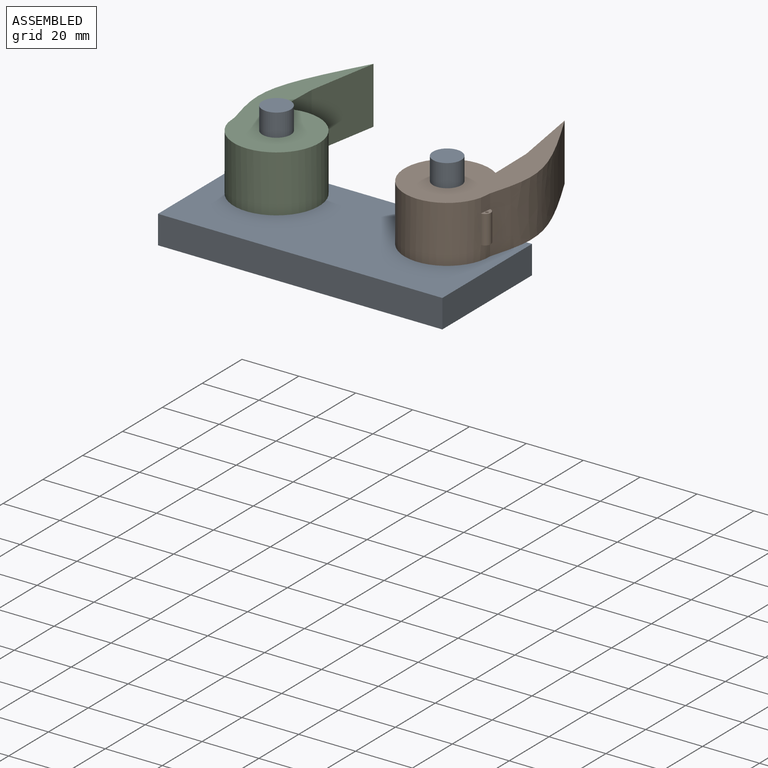
[diagram: assembled view]
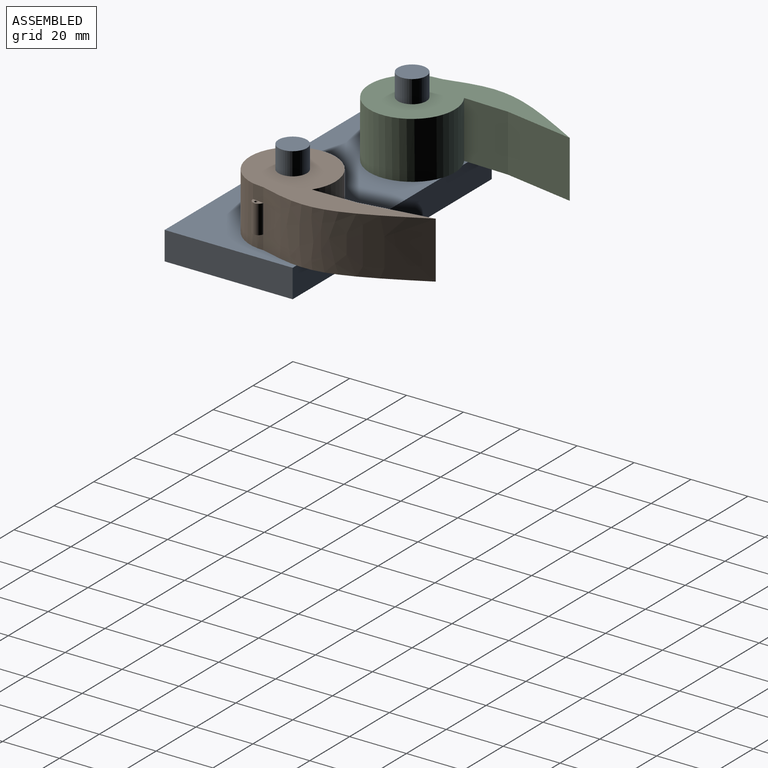
[diagram: assembled view, second angle]
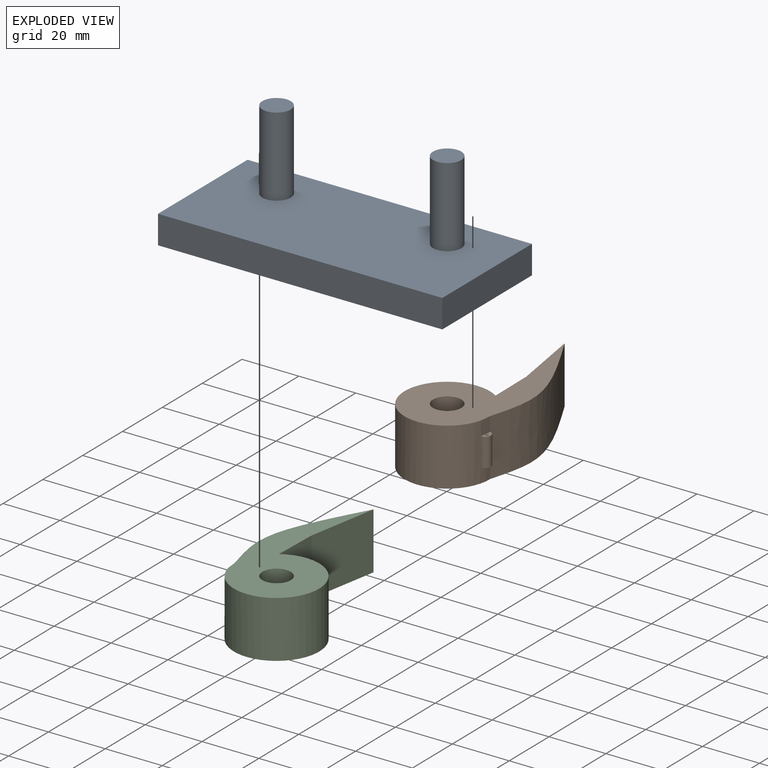
[diagram: exploded view]
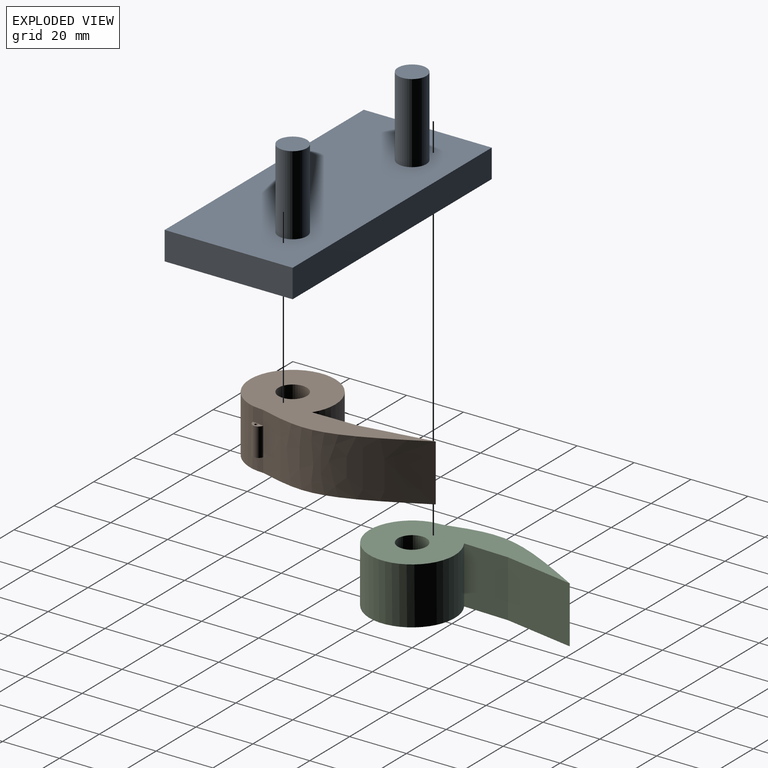
[diagram: exploded view, second angle]
ASSEMBLY  parts=3 mates=2
PART A: 10 faces, bbox 100x45x38 mm
  f0: plane 100x10mm, normal (0,1,0), area 1000mm2, adj f1,f3,f4,f5
  f1: plane 45x10mm, normal (-1,0,0), area 450mm2, adj f0,f2,f4,f5
  f2: plane 100x10mm, normal (0,-1,0), area 1000mm2, adj f1,f3,f4,f5
  f3: plane 45x10mm, normal (1,0,0), area 450mm2, adj f0,f2,f4,f5
  f4: plane 100x45mm, normal (0,0,1), area 4342.9mm2, adj f0,f1,f2,f3,f6,f8
  f5: plane 100x45mm, normal (0,0,-1), area 4500mm2, adj f0,f1,f2,f3
  f6: cylinder r=5mm len=28mm, axis (0,0,-1), area 879.6mm2, adj f4,f7
  f7: plane 10x10mm, normal (0,0,1), area 78.5mm2, adj f6
  f8: cylinder r=5mm len=28mm, axis (0,0,-1), area 879.6mm2, adj f4,f9
  f9: plane 10x10mm, normal (0,0,1), area 78.5mm2, adj f8
PART B: 12 faces, bbox 33.6x68.1x20 mm
  f0: cylinder r=2mm len=10mm, axis (0,0,-1), area 59.5mm2, adj f4,f5,f10,f11
  f1: cylinder r=0.5mm len=10mm, axis (0,0,-1), area 31.4mm2, adj f10,f11
  f2: plane 68.11x33.56mm, normal (0,0,1), area 928.4mm2, adj f3,f4,f5,f6,f7,f9
  f3: plane 20x15.75mm, normal (-1,0,0), area 314.9mm2, adj f2,f4,f7,f8
  f4: cylinder r=15mm len=30mm, axis (0,0,-1), area 1531.7mm2, adj f0,f2,f3,f5,f8,f9,f11
  f5: extruded ~53.11x20mm, area 1126.5mm2, adj f0,f2,f4,f7,f8,f9
  f6: cylinder r=5mm len=20mm, axis (0,0,-1), area 628.3mm2, adj f2,f8
  f7: plane 24.93x20mm, normal (-0.99,-0.15,0), area 504mm2, adj f2,f3,f5,f8
  f8: plane 68.11x33.56mm, normal (0,0,-1), area 928.7mm2, adj f3,f4,f5,f6,f7
  f9: plane 5x3.95mm, normal (0.99,-0.13,0), area 19.9mm2, adj f2,f4,f5,f10
  f10: plane 3.95x2.1mm, normal (0,0,1), area 4.8mm2, adj f0,f1,f9
  f11: plane 3.95x2.1mm, normal (0,0,-1), area 4.5mm2, adj f0,f1,f4
PART C: 12 faces, bbox 33.6x68.1x20 mm
  f0: plane 68.11x33.56mm, normal (0,0,-1), area 928.8mm2, adj f4,f5,f6,f7,f8
  f1: cylinder r=2mm len=10mm, axis (0,0,-1), area 59.5mm2, adj f4,f5,f10,f11
  f2: cylinder r=0.5mm len=10mm, axis (0,0,-1), area 31.4mm2, adj f10,f11
  f3: plane 68.11x33.56mm, normal (0,0,1), area 928.4mm2, adj f4,f5,f6,f7,f8,f9
  f4: extruded ~53.11x20mm, area 1126.5mm2, adj f0,f1,f3,f5,f8,f9
  f5: cylinder r=15mm len=30mm, axis (0,0,-1), area 1531.7mm2, adj f0,f1,f3,f4,f6,f9,f11
  f6: plane 20x15.75mm, normal (1,0,0), area 314.9mm2, adj f0,f3,f5,f8
  f7: cylinder r=5mm len=20mm, axis (0,0,-1), area 628.3mm2, adj f0,f3
  f8: plane 24.93x20mm, normal (0.99,-0.15,0), area 504mm2, adj f0,f3,f4,f6
  f9: plane 5x3.95mm, normal (-0.99,-0.13,0), area 19.9mm2, adj f3,f4,f5,f10
  f10: plane 3.95x2.1mm, normal (0,0,1), area 4.8mm2, adj f1,f2,f9
  f11: plane 3.95x2.1mm, normal (0,0,-1), area 4.5mm2, adj f1,f2,f5
PLACE A t=(-50,20,-10)mm
PLACE B rot(axis=(0,0,1),0.7deg) t=(-50,-14.35,0)mm
PLACE C rot(axis=(0,0,-1),1.7deg) t=(-50.01,-14.87,0)mm
MATE revolute B.f4 <-> A.f8  axis (0,0,1) through (-20,-14,20)mm
MATE revolute C.f5 <-> A.f6  axis (0,0,1) through (-80,-14,20)mm
